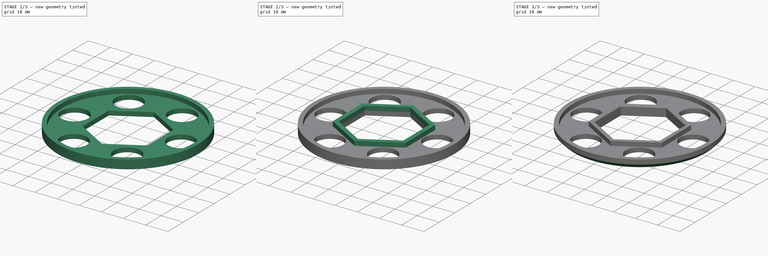
[diagram: build sequence overview — one tinted view per stage of 3, left to right]
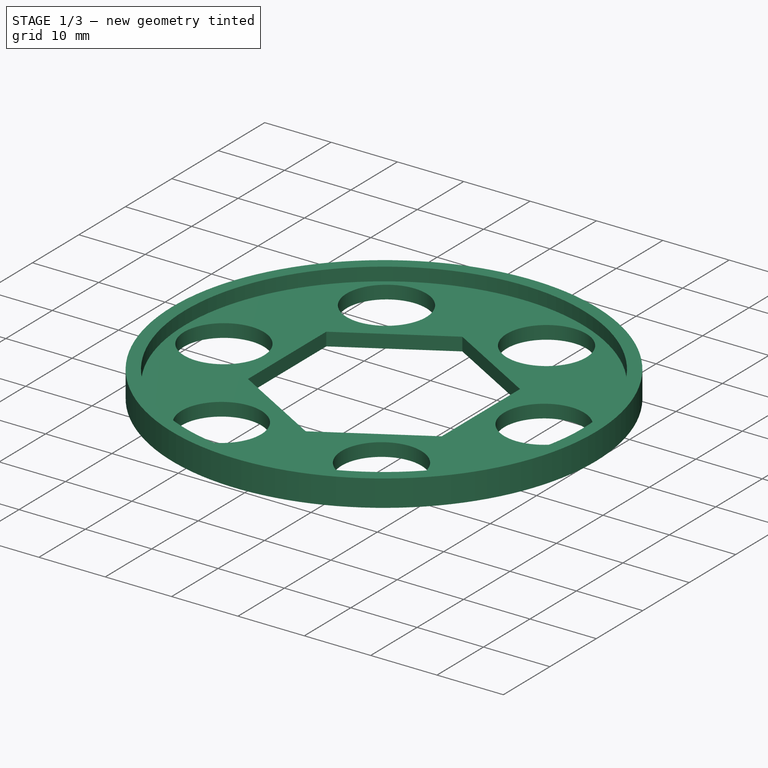
[diagram: stage 1 of 3 — iso view after this stage's code; geometry added in this stage tinted green]
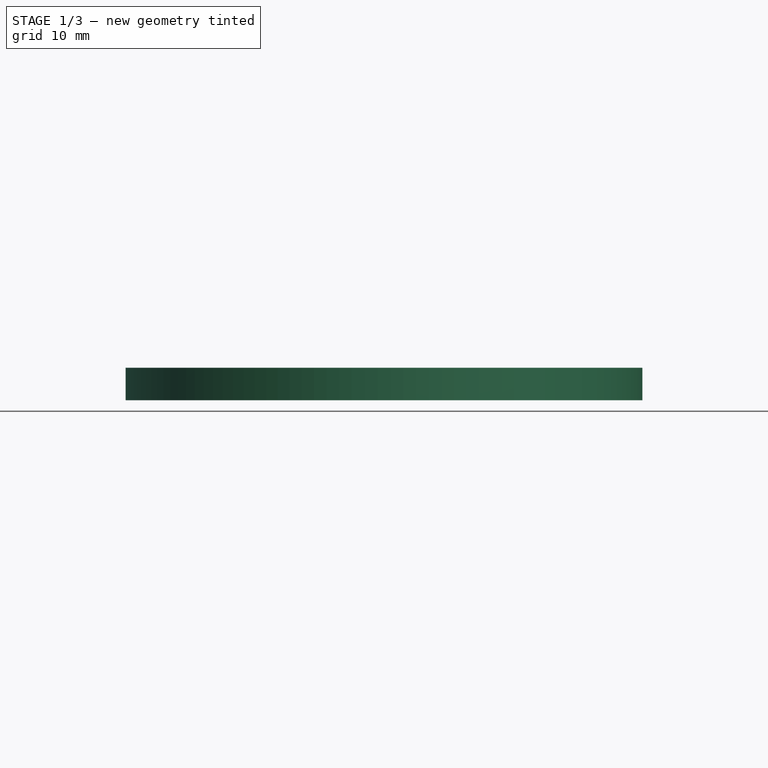
[diagram: stage 1 of 3 — front view after this stage's code; geometry added in this stage tinted green]
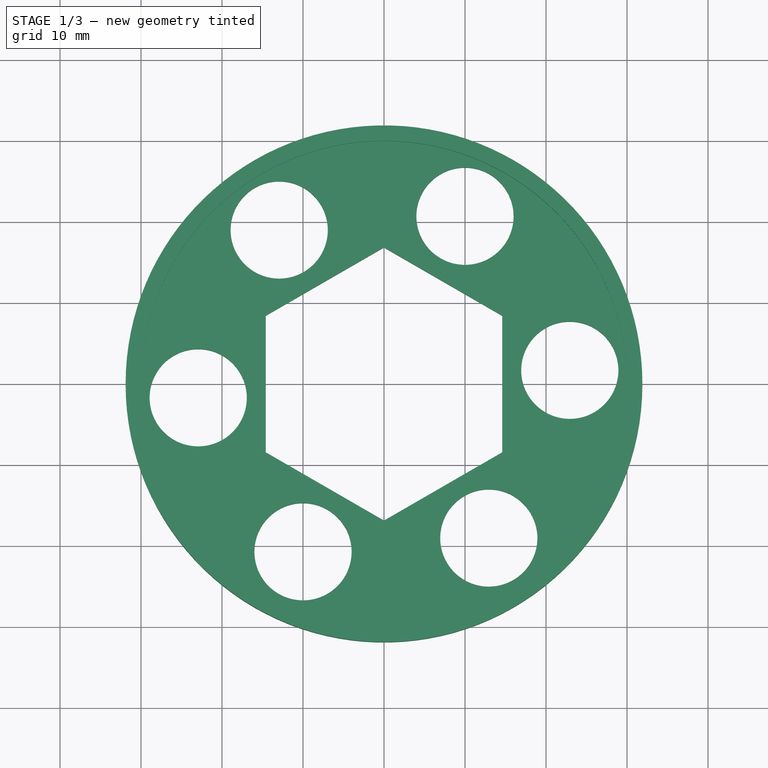
[diagram: stage 1 of 3 — top view after this stage's code; geometry added in this stage tinted green]
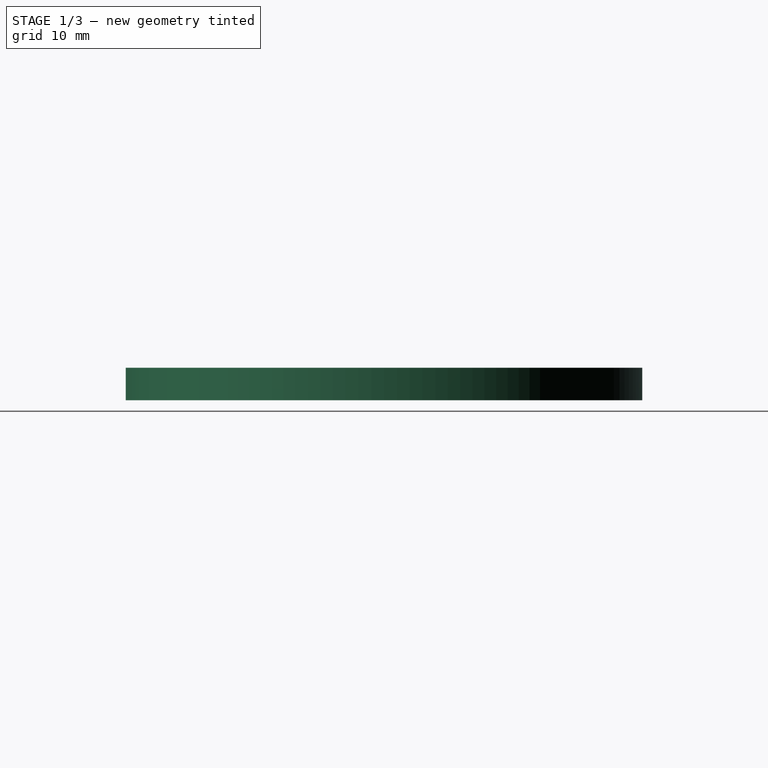
[diagram: stage 1 of 3 — right view after this stage's code; geometry added in this stage tinted green]
FCSTD DOCUMENT  (FreeCAD 0.19R24276 (Git))
Label: Glass_holder_d64_L29_2
License: All rights reserved
LicenseURL: http://en.wikipedia.org/wiki/All_rights_reserved
objects: Sketcher::SketchObject×3, PartDesign::Pad×3, PartDesign::Chamfer×2, PartDesign::Body×1
note: 14 computed .brp shape members not serialized (recipe doc carries the construction recipe); baked Part::Feature solids carry a one-line shape summary decoded from their .brp

FEATURE [Sketcher::SketchObject] Sketch  label="Sketch_d63,8_L29,2_d15x6"
  FullyConstrained = false
  MapMode = 5
  Support = -> [XY_Plane]
  sketch-geometry (21):
    g0: Circle CenterX=0 CenterY=0 CenterZ=0 NormalX=0 NormalY=0 NormalZ=1 AngleXU=0 Radius=31.9
    g1: LineSegment StartX=0 StartY=16.8586 StartZ=0 EndX=-14.6 EndY=8.42931 EndZ=0
    g2: LineSegment StartX=-14.6 StartY=8.42931 StartZ=0 EndX=-14.6 EndY=-8.42931 EndZ=0
    g3: LineSegment StartX=-14.6 StartY=-8.42931 StartZ=0 EndX=0 EndY=-16.8586 EndZ=0
    g4: LineSegment StartX=0 StartY=-16.8586 StartZ=0 EndX=14.6 EndY=-8.42931 EndZ=0
    g5: LineSegment StartX=14.6 StartY=-8.42931 StartZ=0 EndX=14.6 EndY=8.42931 EndZ=0
    g6: LineSegment StartX=14.6 StartY=8.42931 StartZ=0 EndX=0 EndY=16.8586 EndZ=0
    g7: Circle CenterX=0 CenterY=0 CenterZ=0 NormalX=0 NormalY=0 NormalZ=1 AngleXU=0 Radius=16.8586
    g8: LineSegment StartX=22.9373 StartY=1.69697 StartZ=0 EndX=9.99904 EndY=20.7128 EndZ=0
    g9: LineSegment StartX=9.99904 StartY=20.7128 StartZ=0 EndX=-12.9383 EndY=19.0158 EndZ=0
    g10: LineSegment StartX=-12.9383 StartY=19.0158 StartZ=0 EndX=-22.9373 EndY=-1.69697 EndZ=0
    g11: LineSegment StartX=-22.9373 StartY=-1.69697 StartZ=0 EndX=-9.99904 EndY=-20.7128 EndZ=0
    g12: LineSegment StartX=-9.99904 StartY=-20.7128 StartZ=0 EndX=12.9383 EndY=-19.0158 EndZ=0
    g13: LineSegment StartX=12.9383 StartY=-19.0158 StartZ=0 EndX=22.9373 EndY=1.69697 EndZ=0
    g14: Circle CenterX=0 CenterY=0 CenterZ=0 NormalX=0 NormalY=0 NormalZ=1 AngleXU=0 Radius=23
    g15: Circle CenterX=9.99904 CenterY=20.7128 CenterZ=0 NormalX=0 NormalY=0 NormalZ=1 AngleXU=0 Radius=6
    g16: Circle CenterX=22.9373 CenterY=1.69697 CenterZ=0 NormalX=0 NormalY=0 NormalZ=1 AngleXU=0 Radius=6
    g17: Circle CenterX=12.9383 CenterY=-19.0158 CenterZ=0 NormalX=0 NormalY=0 NormalZ=1 AngleXU=0 Radius=6
    g18: Circle CenterX=-9.99904 CenterY=-20.7128 CenterZ=0 NormalX=0 NormalY=0 NormalZ=1 AngleXU=0 Radius=6
    g19: Circle CenterX=-22.9373 CenterY=-1.69697 CenterZ=0 NormalX=0 NormalY=0 NormalZ=1 AngleXU=0 Radius=6
    g20: Circle CenterX=-12.9383 CenterY=19.0158 CenterZ=0 NormalX=0 NormalY=0 NormalZ=1 AngleXU=0 Radius=6
  constraints (45):
    c: Coincident(g0,g-1)
    c: Diameter(g0) = 63.8
    c: Coincident(g1,g2)
    c: Coincident(g2,g3)
    c: Coincident(g3,g4)
    c: Coincident(g4,g5)
    c: Coincident(g5,g6)
    c: Coincident(g6,g1)
    c: Equal(g1, g2-g6) x5
    c: PointOnObject(g1,g7)
    c: PointOnObject(g2,g7)
    c: PointOnObject(g3,g7)
    c: PointOnObject(g4,g7)
    c: PointOnObject(g5,g7)
    c: PointOnObject(g6,g7)
    c: Coincident(g7,g0)
    c: PointOnObject(g6,g-2)
    c: Coincident(g8,g9)
    c: Coincident(g9,g10)
    c: Coincident(g10,g11)
    c: Coincident(g11,g12)
    c: Coincident(g12,g13)
    c: Coincident(g13,g8)
    c: Equal(g8, g9-g13) x5
    c: PointOnObject(g8,g14)
    c: PointOnObject(g9,g14)
    c: PointOnObject(g10,g14)
    c: PointOnObject(g11,g14)
    c: PointOnObject(g12,g14)
    c: PointOnObject(g13,g14)
    c: Coincident(g14,g0)
    c: Diameter(g14) = 46
    c: Coincident(g15,g8)
    c: Coincident(g16,g8)
    c: Coincident(g17,g12)
    c: Coincident(g18,g11)
    c: Coincident(g19,g10)
    c: Coincident(g20,g9)
    c: Equal(g20,g15)
    c: Equal(g15,g16)
    c: Equal(g16,g17)
    c: Equal(g17,g18)
    c: Equal(g18,g19)
    c: Diameter(g17) = 12
    c: DistanceX(g2,g4) = 29.2
FEATURE [PartDesign::Pad] Pad  label="Pad_h2"
  Direction = (1,1,1)
  Length = 2
  Length2 = 100
  Profile = -> Sketch
  Type = 0
FEATURE [Sketcher::SketchObject] Sketch001  label="Sketch001_d63,8_d60"
  FullyConstrained = true
  MapMode = 5
  Placement = pos=(0,0,2) rot=(0,0,1;0rad)
  Support = -> [Pad]
  sketch-geometry (2):
    g0: Circle CenterX=0 CenterY=0 CenterZ=0 NormalX=0 NormalY=0 NormalZ=1 AngleXU=0 Radius=31.9
    g1: Circle CenterX=0 CenterY=0 CenterZ=0 NormalX=0 NormalY=0 NormalZ=1 AngleXU=0 Radius=30
  constraints (4):
    c: Coincident(g0,g-1)
    c: Diameter(g0) = 63.8
    c: Coincident(g1,g0)
    c: Diameter(g1) = 60
FEATURE [PartDesign::Pad] Pad001  label="Pad001_h2"
  BaseFeature = -> Pad
  Direction = (1,1,1)
  Length = 2
  Length2 = 100
  Profile = -> Sketch001
  Type = 0
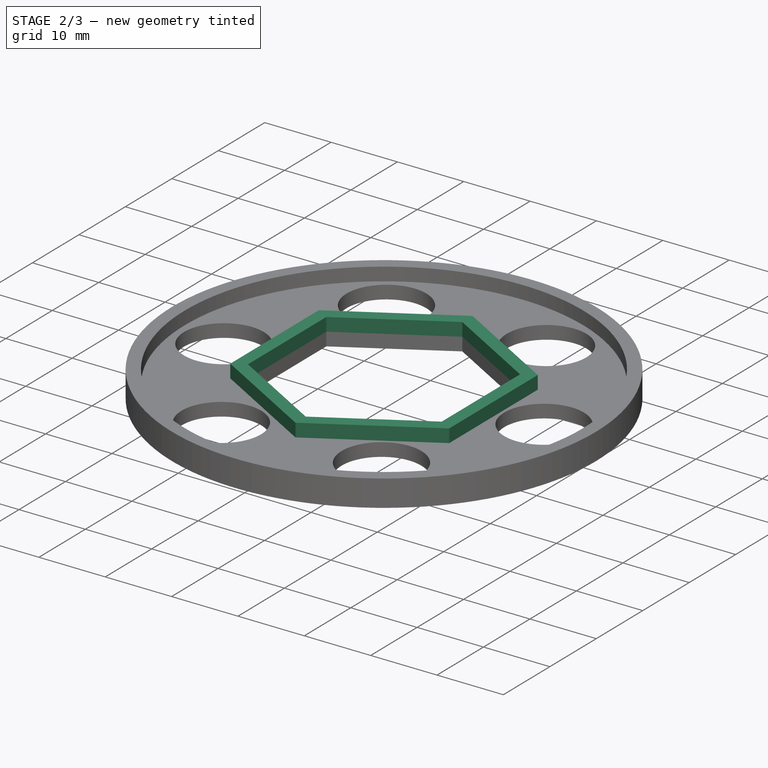
[diagram: stage 2 of 3 — iso view after this stage's code; geometry added in this stage tinted green]
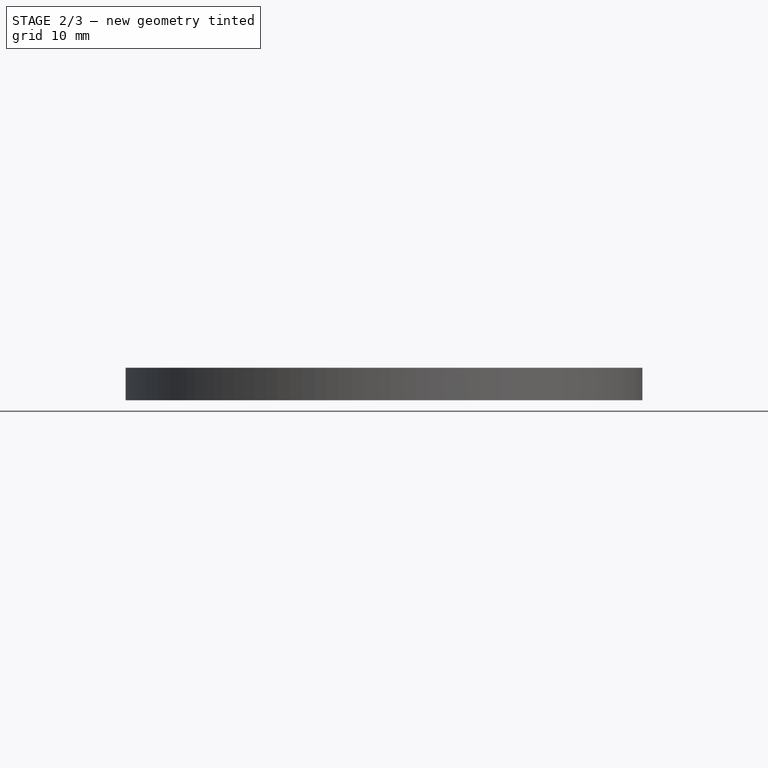
[diagram: stage 2 of 3 — front view after this stage's code; geometry added in this stage tinted green]
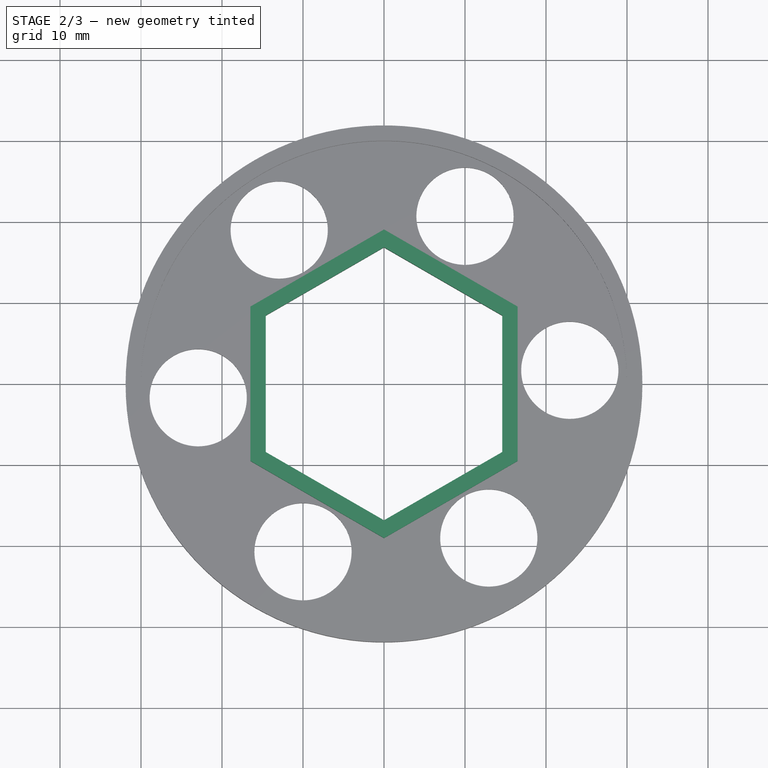
[diagram: stage 2 of 3 — top view after this stage's code; geometry added in this stage tinted green]
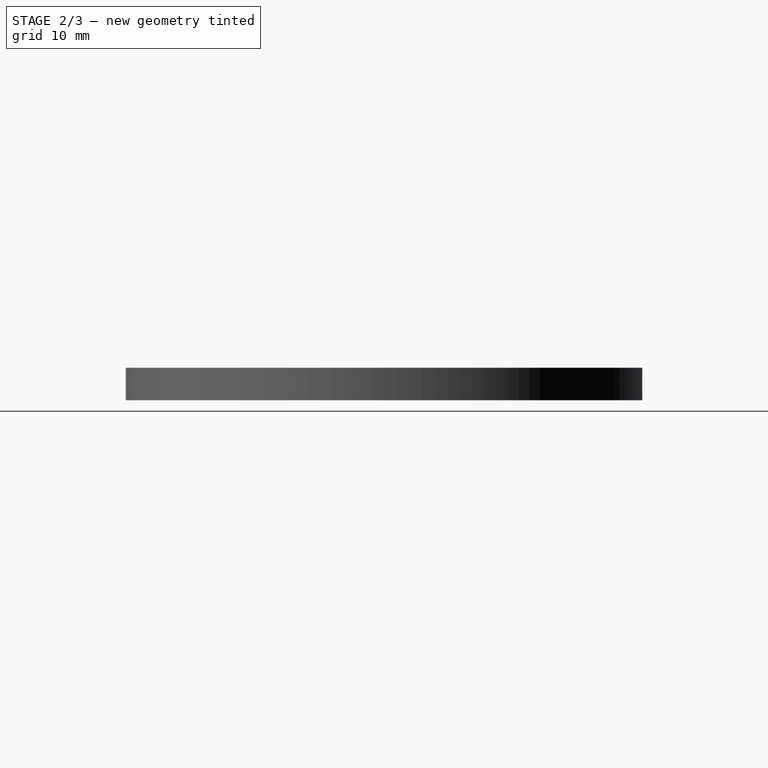
[diagram: stage 2 of 3 — right view after this stage's code; geometry added in this stage tinted green]
FEATURE [Sketcher::SketchObject] Sketch002  label="Sketch002_L29_2_L33"
  FullyConstrained = true
  MapMode = 5
  Placement = pos=(0,0,2) rot=(0,0,1;0rad)
  Support = -> [Pad001]
  sketch-geometry (14):
    g0: LineSegment StartX=0 StartY=16.8586 StartZ=0 EndX=-14.6 EndY=8.42931 EndZ=0
    g1: LineSegment StartX=-14.6 StartY=8.42931 StartZ=0 EndX=-14.6 EndY=-8.42931 EndZ=0
    g2: LineSegment StartX=-14.6 StartY=-8.42931 StartZ=0 EndX=0 EndY=-16.8586 EndZ=0
    g3: LineSegment StartX=0 StartY=-16.8586 StartZ=0 EndX=14.6 EndY=-8.42931 EndZ=0
    g4: LineSegment StartX=14.6 StartY=-8.42931 StartZ=0 EndX=14.6 EndY=8.42931 EndZ=0
    g5: LineSegment StartX=14.6 StartY=8.42931 StartZ=0 EndX=0 EndY=16.8586 EndZ=0
    g6: Circle CenterX=0 CenterY=0 CenterZ=0 NormalX=0 NormalY=0 NormalZ=1 AngleXU=0 Radius=16.8586
    g7: LineSegment StartX=0 StartY=19.0526 StartZ=0 EndX=-16.5 EndY=9.52628 EndZ=0
    g8: LineSegment StartX=-16.5 StartY=9.52628 StartZ=0 EndX=-16.5 EndY=-9.52628 EndZ=0
    g9: LineSegment StartX=-16.5 StartY=-9.52628 StartZ=0 EndX=7.11e-14 EndY=-19.0526 EndZ=0
    g10: LineSegment StartX=7.11e-14 StartY=-19.0526 StartZ=0 EndX=16.5 EndY=-9.52628 EndZ=0
    g11: LineSegment StartX=16.5 StartY=-9.52628 StartZ=0 EndX=16.5 EndY=9.52628 EndZ=0
    g12: LineSegment StartX=16.5 StartY=9.52628 StartZ=0 EndX=0 EndY=19.0526 EndZ=0
    g13: Circle CenterX=0 CenterY=0 CenterZ=0 NormalX=0 NormalY=0 NormalZ=1 AngleXU=0 Radius=19.0526
  constraints (32):
    c: Coincident(g0,g1)
    c: Coincident(g1,g2)
    c: Coincident(g2,g3)
    c: Coincident(g3,g4)
    c: Coincident(g4,g5)
    c: Coincident(g5,g0)
    c: Equal(g0, g1-g5) x5
    c: PointOnObject(g0,g6)
    c: PointOnObject(g1,g6)
    c: PointOnObject(g2,g6)
    c: PointOnObject(g3,g6)
    c: PointOnObject(g4,g6)
    c: PointOnObject(g5,g6)
    c: Coincident(g6,g-1)
    c: PointOnObject(g5,g-2)
    c: Coincident(g7,g8)
    c: Coincident(g8,g9)
    c: Coincident(g9,g10)
    c: Coincident(g10,g11)
    c: Coincident(g11,g12)
    c: Coincident(g12,g7)
    c: Equal(g7, g8-g12) x5
    c: PointOnObject(g7,g13)
    c: PointOnObject(g8,g13)
    c: PointOnObject(g9,g13)
    c: PointOnObject(g10,g13)
    c: PointOnObject(g11,g13)
    c: PointOnObject(g12,g13)
    c: Coincident(g13,g-1)
    c: PointOnObject(g12,g-2)
    c: DistanceX(g1,g3) = 29.2
    c: DistanceX(g8,g10) = 33
FEATURE [PartDesign::Pad] Pad002  label="Pad002_h2"
  BaseFeature = -> Pad001
  Direction = (1,1,1)
  Length = 2
  Length2 = 100
  Profile = -> Sketch002
  Type = 0
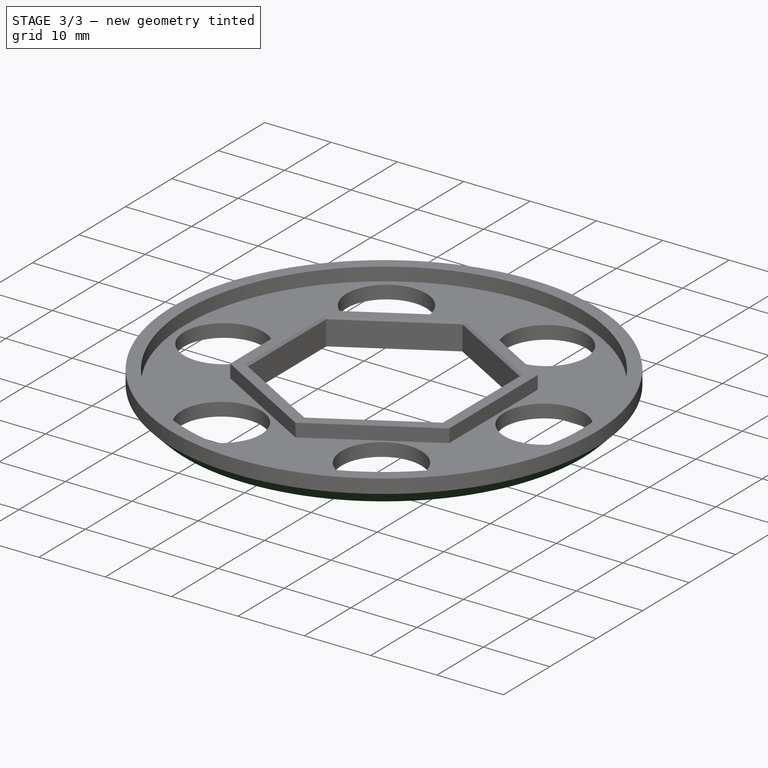
[diagram: stage 3 of 3 — iso view after this stage's code; geometry added in this stage tinted green]
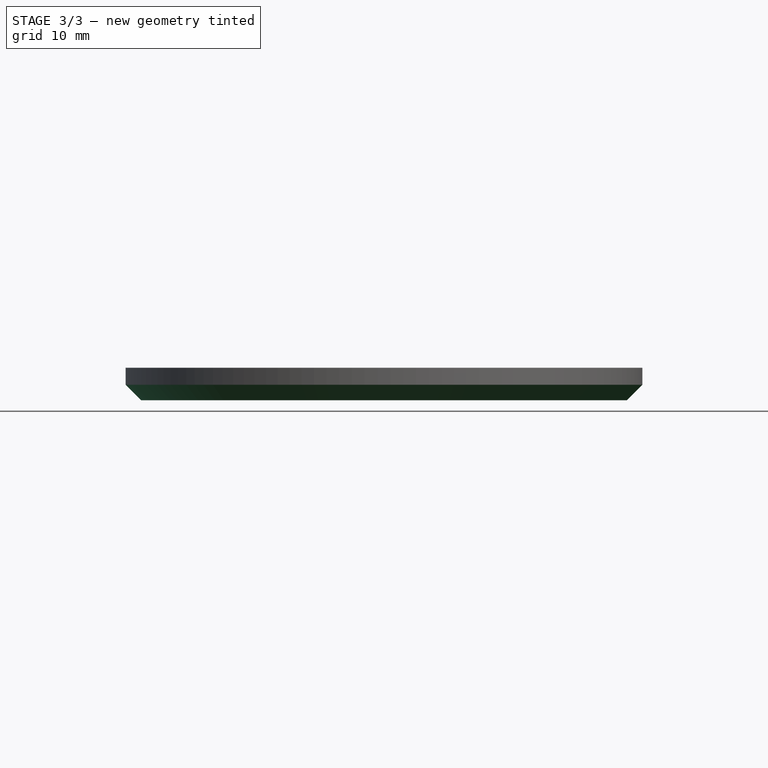
[diagram: stage 3 of 3 — front view after this stage's code; geometry added in this stage tinted green]
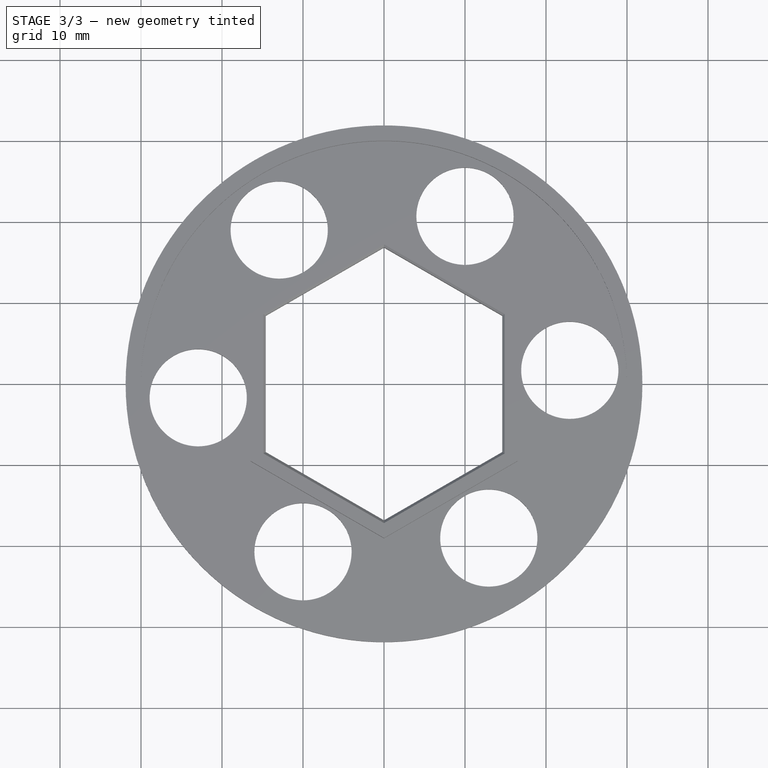
[diagram: stage 3 of 3 — top view after this stage's code; geometry added in this stage tinted green]
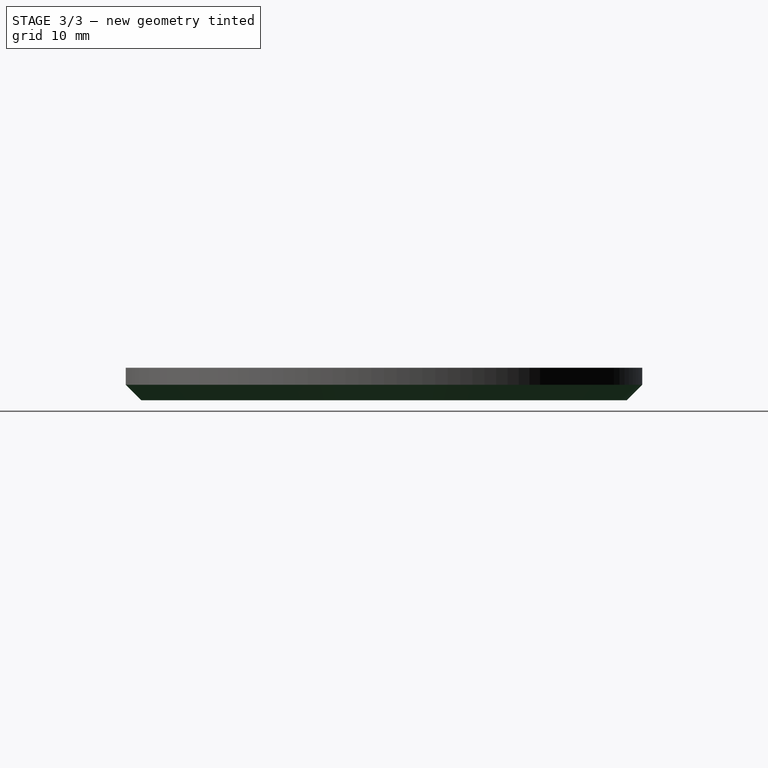
[diagram: stage 3 of 3 — right view after this stage's code; geometry added in this stage tinted green]
FEATURE [PartDesign::Chamfer] Chamfer
  Angle = 45
  Base = -> Pad002 [Edge2]
  BaseFeature = -> Pad002
  ChamferType = 0
  FlipDirection = false
  Size = 1.9
  Size2 = 1
  SupportTransform = false
FEATURE [PartDesign::Chamfer] Chamfer001
  Angle = 45
  Base = -> Chamfer [Edge55,Edge57,Edge58,Edge49,Edge51,Edge53]
  BaseFeature = -> Chamfer
  ChamferType = 0
  FlipDirection = false
  Size = 0.3
  Size2 = 1
  SupportTransform = false
FEATURE [PartDesign::Body] Body
  Group = -> [Sketch,Pad,Sketch001,Pad001,Sketch002,Pad002,Chamfer,Chamfer001]
  Origin = -> Origin
  Tip = -> Chamfer001
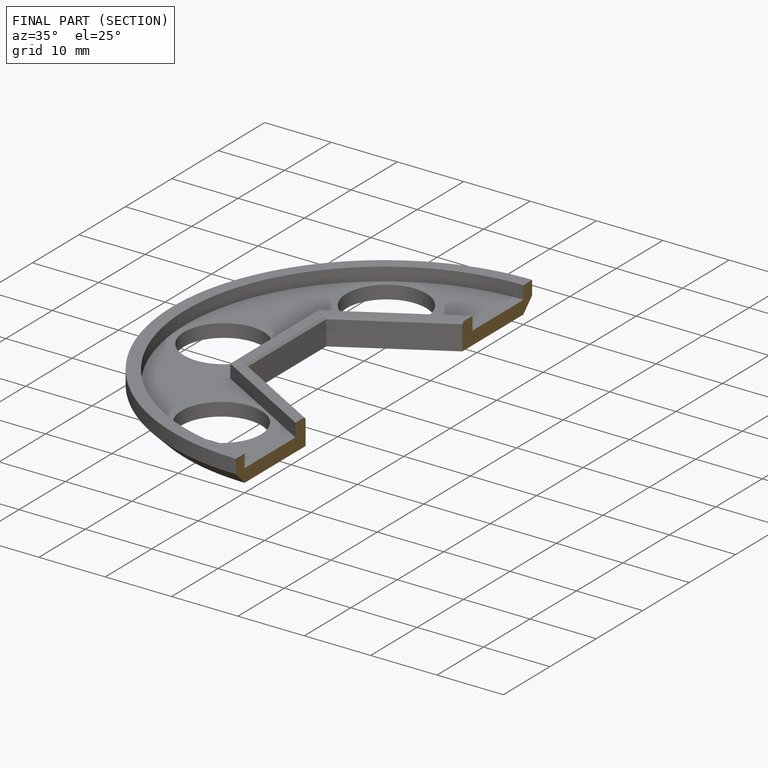
[diagram: finished part — half-section view (interior)]
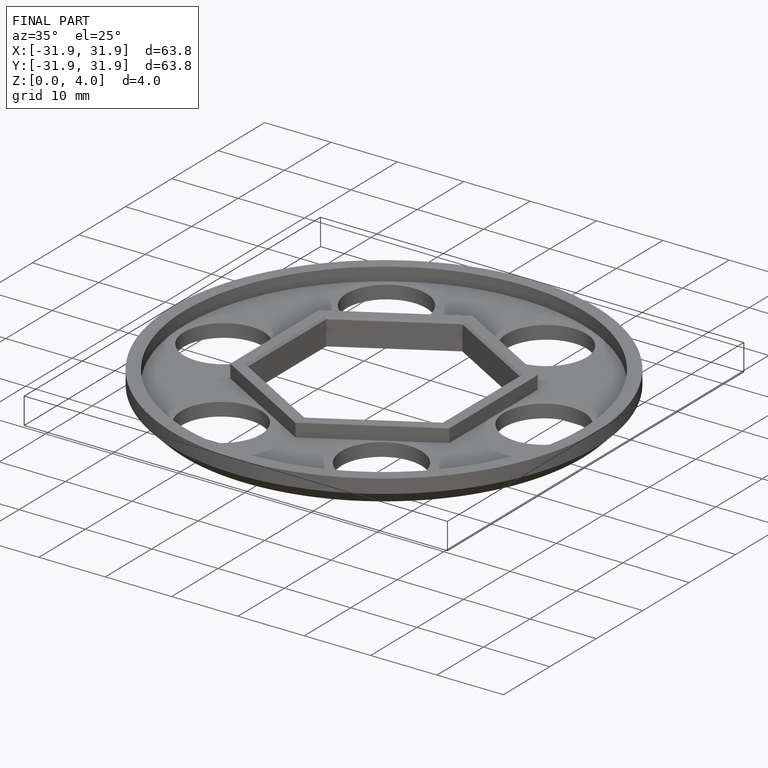
[diagram: finished part — iso view with bounding-box wireframe]
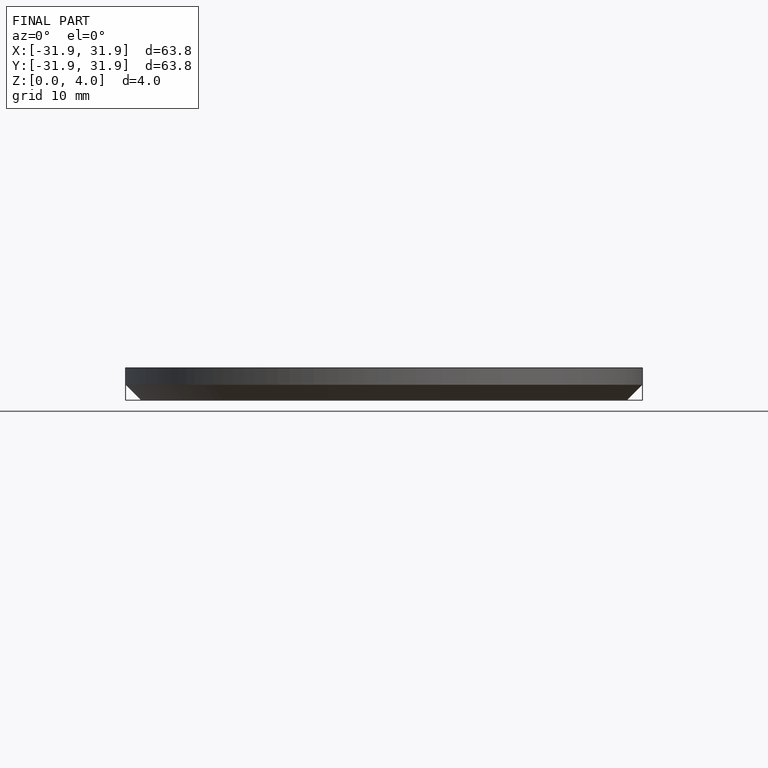
[diagram: finished part — front view with bounding-box wireframe]
